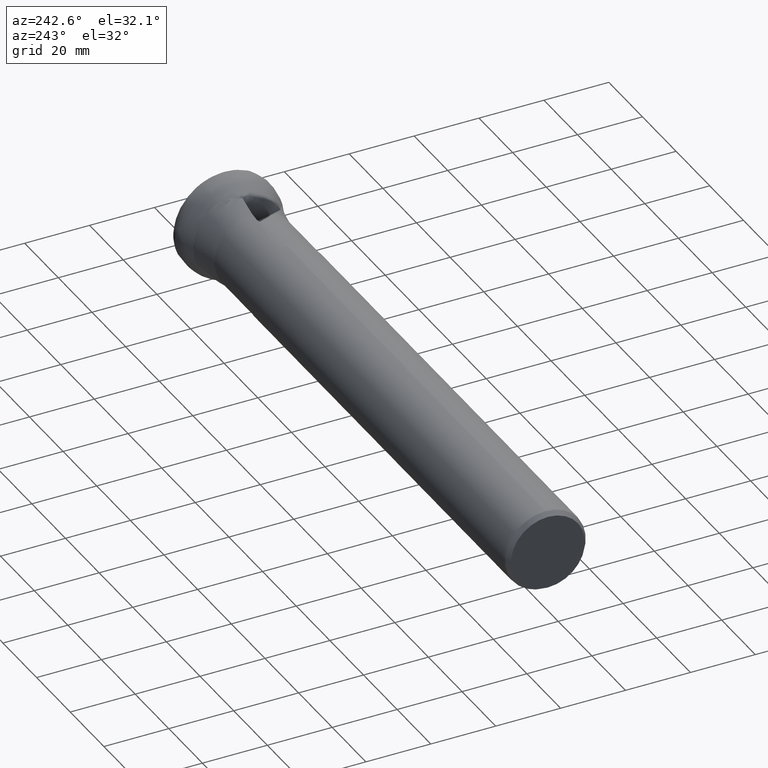
[diagram: clean part render]
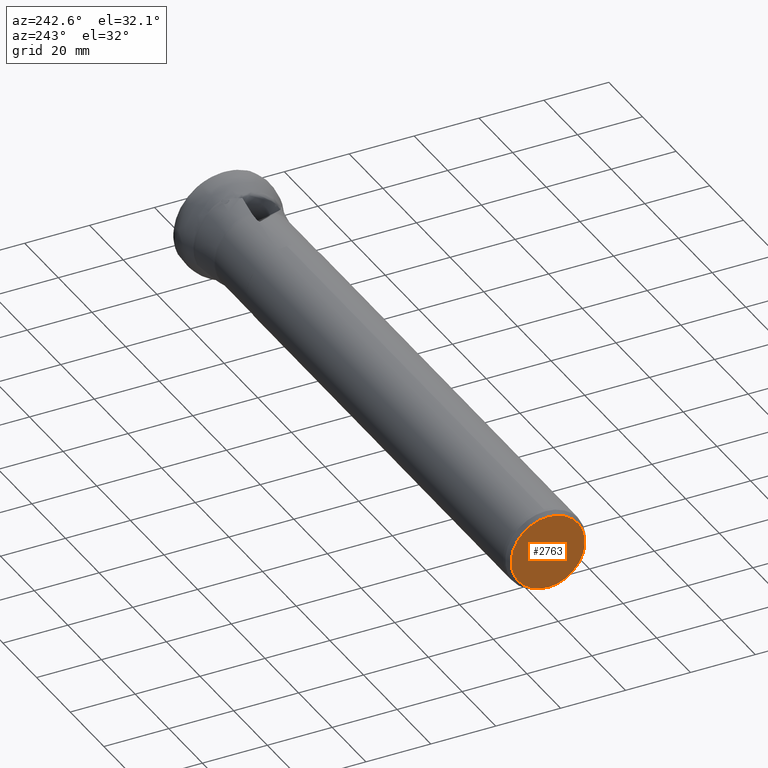
[diagram: same view with one face highlighted and labeled with its STEP entity id]
A machine part, auxiliary view. The second image highlights one B-rep face of the part: STEP entity #2763.
In plain terms, the highlighted planar face has unit normal (-1, 0, 0).
Its self-contained STEP definition (entity closure, byte-faithful):
#437 = FACE_OUTER_BOUND ( 'NONE', #4689, .T. ) ;
#984 = AXIS2_PLACEMENT_3D ( 'NONE', #1792, #4547, #2213 ) ;
#1792 = CARTESIAN_POINT ( 'NONE',  ( -193.9052591770394500, 0.0000000000000000000, 0.0000000000000000000 ) ) ;
#1912 = DIRECTION ( 'NONE',  ( -1.000000000000000000, 0.0000000000000000000, 0.0000000000000000000 ) ) ;
#2213 = DIRECTION ( 'NONE',  ( 0.0000000000000000000, 0.0000000000000000000, -1.000000000000000000 ) ) ;
#2470 = AXIS2_PLACEMENT_3D ( 'NONE', #2701, #1912, #4655 ) ;
#2701 = CARTESIAN_POINT ( 'NONE',  ( -193.9052591770394500, -2.376491520088714000E-014, 0.0000000000000000000 ) ) ;
#2763 = ADVANCED_FACE ( 'NONE', ( #437 ), #3485, .T. ) ;
#3108 = EDGE_CURVE ( 'NONE', #4386, #4386, #5098, .T. ) ;
#3450 = CARTESIAN_POINT ( 'NONE',  ( -193.9052591770394500, 0.0000000000000000000, -11.39999999999997500 ) ) ;
#3485 = PLANE ( 'NONE',  #2470 ) ;
#4161 = ORIENTED_EDGE ( 'NONE', *, *, #3108, .F. ) ;
#4386 = VERTEX_POINT ( 'NONE', #3450 ) ;
#4547 = DIRECTION ( 'NONE',  ( 1.000000000000000000, -0.0000000000000000000, -0.0000000000000000000 ) ) ;
#4655 = DIRECTION ( 'NONE',  ( 0.0000000000000000000, 0.0000000000000000000, 1.000000000000000000 ) ) ;
#4689 = EDGE_LOOP ( 'NONE', ( #4161 ) ) ;
#5098 = CIRCLE ( 'NONE', #984, 11.39999999999997500 ) ;